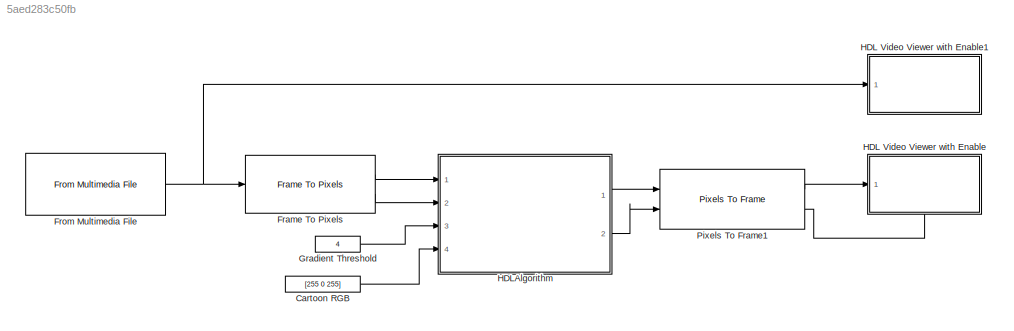
MODEL slx_5aed283c50fb
KIND model
CONFIG AbsTol = auto
CONFIG EnableMultiTasking = off
CONFIG FixedStep = auto
CONFIG MaxStep = auto
CONFIG MinStep = auto
CONFIG RelTol = 1e-3
CONFIG SampleTimeConstraint = Unconstrained
CONFIG Solver = FixedStepDiscrete
CONFIG SolverName = FixedStepDiscrete
CONFIG StartTime = 0.0
CONFIG StopTime = 9
BLOCK [Constant] Cartoon RGB
  OutDataTypeStr = Inherit: Inherit via back propagation
  SampleTime = -1
  Value = [255 0 255]
BLOCK [Reference] Frame To Pixels  REF=visionhdlio/Frame To Pixels
  Ports = [1, 2]
  SourceBlock = visionhdlio/Frame To Pixels
  SourceProductBaseCode = VT
  SourceProductName = Vision HDL Toolbox
  SourceType = Frame To Pixels
BLOCK [Reference] From Multimedia File  REF=dspvision/From Multimedia File
  Ports = [0, 1]
  SourceBlock = dspvision/From Multimedia File
  SourceProductBaseCode = DS
  SourceProductName = DSP System Toolbox
  SourceType = From Multimedia File
BLOCK [Constant] Gradient Threshold
  OutDataTypeStr = uint8
  SampleTime = -1
  Value = 4
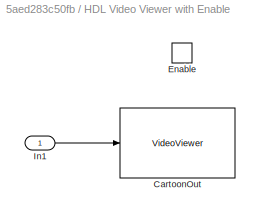
BLOCK [SubSystem] HDL Video Viewer with Enable
  Ports = [1, 0, 1]
  RequestExecContextInheritance = off
BLOCK [VideoViewer] HDL Video Viewer with Enable/CartoonOut
  FigPos = [420 351 320 243]
  Ports = [1]
  ScopeSpecificationString = vipscopes.VideoViewerScopeCfg('CurrentConfiguration', extmgr.ConfigurationSet(extmgr.Configuration('Core','General UI',true),extmgr.Configuration('Core','Source UI',true),extmgr.Configuration('Sources','WiredSimulink',true),extmgr.Configuration('Visuals','Video',true,'AxesProperties',struct('Color',[1 1 1],'XColor',[0.15 0.15 0.15],'YColor',[0.15 0.15 0.15],'ZColor',[0.15 0.15 0.15],'XGrid','off',...<+624ch>
  colormapValue = gray(256)
BLOCK [EnablePort] HDL Video Viewer with Enable/Enable
  Ports = []
BLOCK [Inport] HDL Video Viewer with Enable/In1
  IconDisplay = Port number
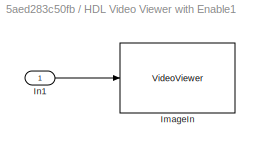
BLOCK [SubSystem] HDL Video Viewer with Enable1
  Ports = [1]
  RequestExecContextInheritance = off
BLOCK [VideoViewer] HDL Video Viewer with Enable1/ImageIn
  FigPos = [249 353 321 244]
  Ports = [1]
  ScopeSpecificationString = vipscopes.VideoViewerScopeCfg('CurrentConfiguration', extmgr.ConfigurationSet(extmgr.Configuration('Core','General UI',true),extmgr.Configuration('Core','Source UI',true),extmgr.Configuration('Sources','WiredSimulink',true),extmgr.Configuration('Visuals','Video',true,'AxesProperties',struct('Color',[1 1 1],'XColor',[0.15 0.15 0.15],'YColor',[0.15 0.15 0.15],'ZColor',[0.15 0.15 0.15],'XGrid','off',...<+624ch>
  colormapValue = gray(256)
BLOCK [Inport] HDL Video Viewer with Enable1/In1
  IconDisplay = Port number
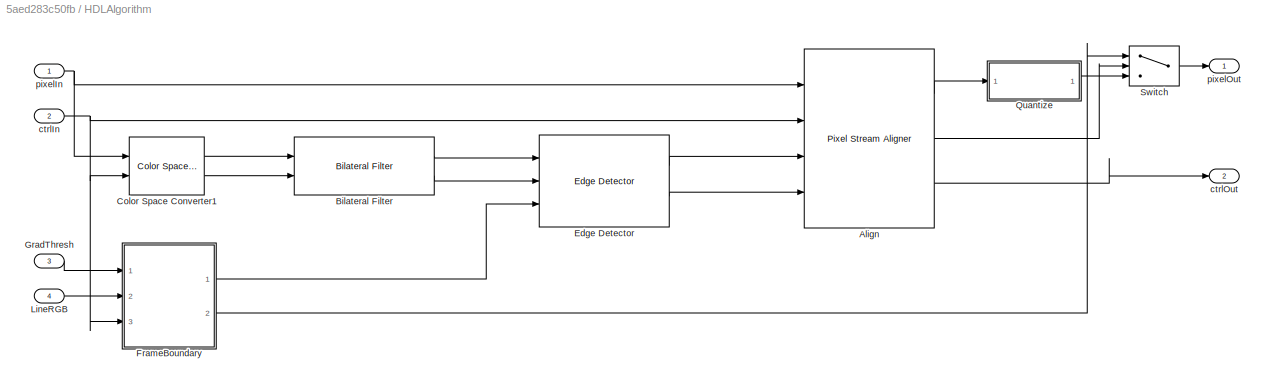
BLOCK [SubSystem] HDLAlgorithm
  Ports = [4, 2]
  RequestExecContextInheritance = off
BLOCK [Reference] HDLAlgorithm/Align  REF=visionhdlutilities/Pixel Stream Aligner
  Ports = [4, 3]
  SourceBlock = visionhdlutilities/Pixel Stream Aligner
  SourceProductBaseCode = VT
  SourceProductName = Vision HDL Toolbox
  SourceType = visionhdl.PixelStreamAligner
BLOCK [Reference] HDLAlgorithm/Bilateral Filter  REF=visionhdlfilter/Bilateral Filter
  Ports = [2, 2]
  SourceBlock = visionhdlfilter/Bilateral Filter
  SourceProductBaseCode = VT
  SourceProductName = Vision HDL Toolbox
  SourceType = visionhdl.BilateralFilter
BLOCK [Reference] HDLAlgorithm/Color Space Converter1  REF=visionhdlconversions/Color Space Converter
  Ports = [2, 2]
  SourceBlock = visionhdlconversions/Color Space Converter
  SourceProductBaseCode = VT
  SourceProductName = Vision HDL Toolbox
  SourceType = Color Space Converter
BLOCK [Reference] HDLAlgorithm/Edge Detector  REF=visionhdlanalysis/Edge Detector
  Ports = [3, 2]
  SourceBlock = visionhdlanalysis/Edge Detector
  SourceProductBaseCode = VT
  SourceProductName = Vision HDL Toolbox
  SourceType = Edge Detector
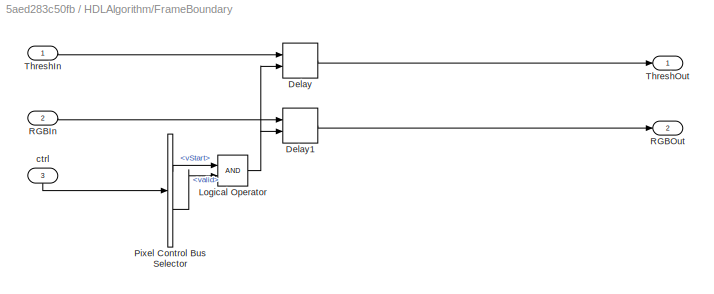
BLOCK [SubSystem] HDLAlgorithm/FrameBoundary
  Ports = [3, 2]
  RequestExecContextInheritance = off
BLOCK [Delay] HDLAlgorithm/FrameBoundary/Delay
  DelayLength = 1
  InputPortMap = u0,e6
  Ports = [2, 1]
  ShowEnablePort = on
BLOCK [Delay] HDLAlgorithm/FrameBoundary/Delay1
  DelayLength = 1
  InputPortMap = u0,e6
  Ports = [2, 1]
  ShowEnablePort = on
BLOCK [Logic] HDLAlgorithm/FrameBoundary/Logical Operator
  AllPortsSameDT = off
  OutDataTypeStr = boolean
  Ports = [2, 1]
BLOCK [BusSelector] HDLAlgorithm/FrameBoundary/Pixel Control Bus Selector
  OutputAsBus = off
  OutputSignals = vStart,valid
  Ports = [1, 2]
BLOCK [Inport] HDLAlgorithm/FrameBoundary/RGBIn
  IconDisplay = Port number
  Port = 2
BLOCK [Outport] HDLAlgorithm/FrameBoundary/RGBOut
  IconDisplay = Port number
  Port = 2
  VectorParamsAs1DForOutWhenUnconnected = off
BLOCK [Inport] HDLAlgorithm/FrameBoundary/ThreshIn
  IconDisplay = Port number
BLOCK [Outport] HDLAlgorithm/FrameBoundary/ThreshOut
  IconDisplay = Port number
  VectorParamsAs1DForOutWhenUnconnected = off
BLOCK [Inport] HDLAlgorithm/FrameBoundary/ctrl
  IconDisplay = Port number
  Port = 3
BLOCK [Inport] HDLAlgorithm/GradThresh
  IconDisplay = Port number
  Port = 3
BLOCK [Inport] HDLAlgorithm/LineRGB
  IconDisplay = Port number
  Port = 4
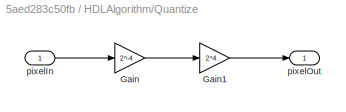
BLOCK [SubSystem] HDLAlgorithm/Quantize
  Ports = [1, 1]
  RequestExecContextInheritance = off
BLOCK [Gain] HDLAlgorithm/Quantize/Gain
  Gain = 2^-4
  ParamDataTypeStr = Inherit: Inherit via internal rule
  SaturateOnIntegerOverflow = off
BLOCK [Gain] HDLAlgorithm/Quantize/Gain1
  Gain = 2^4
  ParamDataTypeStr = Inherit: Inherit via internal rule
  SaturateOnIntegerOverflow = off
BLOCK [Inport] HDLAlgorithm/Quantize/pixelIn
  IconDisplay = Port number
BLOCK [Outport] HDLAlgorithm/Quantize/pixelOut
  IconDisplay = Port number
  VectorParamsAs1DForOutWhenUnconnected = off
BLOCK [Switch] HDLAlgorithm/Switch
  Criteria = u2 ~= 0
  InputSameDT = off
  SaturateOnIntegerOverflow = off
BLOCK [Inport] HDLAlgorithm/ctrlIn
  IconDisplay = Port number
  Port = 2
BLOCK [Outport] HDLAlgorithm/ctrlOut
  IconDisplay = Port number
  Port = 2
  VectorParamsAs1DForOutWhenUnconnected = off
BLOCK [Inport] HDLAlgorithm/pixelIn
  IconDisplay = Port number
BLOCK [Outport] HDLAlgorithm/pixelOut
  IconDisplay = Port number
  VectorParamsAs1DForOutWhenUnconnected = off
BLOCK [Reference] Pixels To Frame1  REF=visionhdlio/Pixels To Frame
  Ports = [2, 2]
  SourceBlock = visionhdlio/Pixels To Frame
  SourceProductBaseCode = VT
  SourceProductName = Vision HDL Toolbox
  SourceType = Pixels To Frame
LINE Cartoon RGB:1 -> HDLAlgorithm:4
LINE Frame To Pixels:1 -> HDLAlgorithm:1
LINE Frame To Pixels:2 -> HDLAlgorithm:2
NET From Multimedia File:1 -> Frame To Pixels:1, HDL Video Viewer with Enable1:1
LINE Gradient Threshold:1 -> HDLAlgorithm:3
LINE HDL Video Viewer with Enable/In1:1 -> HDL Video Viewer with Enable/CartoonOut:1
LINE HDL Video Viewer with Enable1/In1:1 -> HDL Video Viewer with Enable1/ImageIn:1
LINE HDLAlgorithm/Align:1 -> HDLAlgorithm/Quantize:1
LINE HDLAlgorithm/Align:2 -> HDLAlgorithm/Switch:2
LINE HDLAlgorithm/Align:3 -> HDLAlgorithm/ctrlOut:1
LINE HDLAlgorithm/Bilateral Filter:1 -> HDLAlgorithm/Edge Detector:1
LINE HDLAlgorithm/Bilateral Filter:2 -> HDLAlgorithm/Edge Detector:2
LINE HDLAlgorithm/Color Space Converter1:1 -> HDLAlgorithm/Bilateral Filter:1
LINE HDLAlgorithm/Color Space Converter1:2 -> HDLAlgorithm/Bilateral Filter:2
LINE HDLAlgorithm/Edge Detector:1 -> HDLAlgorithm/Align:3
LINE HDLAlgorithm/Edge Detector:2 -> HDLAlgorithm/Align:4
LINE HDLAlgorithm/FrameBoundary/Delay1:1 -> HDLAlgorithm/FrameBoundary/RGBOut:1
LINE HDLAlgorithm/FrameBoundary/Delay:1 -> HDLAlgorithm/FrameBoundary/ThreshOut:1
NET HDLAlgorithm/FrameBoundary/Logical Operator:1 -> HDLAlgorithm/FrameBoundary/Delay1:2, HDLAlgorithm/FrameBoundary/Delay:2
LINE HDLAlgorithm/FrameBoundary/Pixel Control Bus Selector:1 -> HDLAlgorithm/FrameBoundary/Logical Operator:1
LINE HDLAlgorithm/FrameBoundary/Pixel Control Bus Selector:2 -> HDLAlgorithm/FrameBoundary/Logical Operator:2
LINE HDLAlgorithm/FrameBoundary/RGBIn:1 -> HDLAlgorithm/FrameBoundary/Delay1:1
LINE HDLAlgorithm/FrameBoundary/ThreshIn:1 -> HDLAlgorithm/FrameBoundary/Delay:1
LINE HDLAlgorithm/FrameBoundary/ctrl:1 -> HDLAlgorithm/FrameBoundary/Pixel Control Bus Selector:1
LINE HDLAlgorithm/FrameBoundary:1 -> HDLAlgorithm/Edge Detector:3
LINE HDLAlgorithm/FrameBoundary:2 -> HDLAlgorithm/Switch:1
LINE HDLAlgorithm/GradThresh:1 -> HDLAlgorithm/FrameBoundary:1
LINE HDLAlgorithm/LineRGB:1 -> HDLAlgorithm/FrameBoundary:2
LINE HDLAlgorithm/Quantize/Gain1:1 -> HDLAlgorithm/Quantize/pixelOut:1
LINE HDLAlgorithm/Quantize/Gain:1 -> HDLAlgorithm/Quantize/Gain1:1
LINE HDLAlgorithm/Quantize/pixelIn:1 -> HDLAlgorithm/Quantize/Gain:1
LINE HDLAlgorithm/Quantize:1 -> HDLAlgorithm/Switch:3
LINE HDLAlgorithm/Switch:1 -> HDLAlgorithm/pixelOut:1
NET HDLAlgorithm/ctrlIn:1 -> HDLAlgorithm/Align:2, HDLAlgorithm/Color Space Converter1:2, HDLAlgorithm/FrameBoundary:3
NET HDLAlgorithm/pixelIn:1 -> HDLAlgorithm/Align:1, HDLAlgorithm/Color Space Converter1:1
LINE HDLAlgorithm:1 -> Pixels To Frame1:1
LINE HDLAlgorithm:2 -> Pixels To Frame1:2
LINE Pixels To Frame1:1 -> HDL Video Viewer with Enable:1
LINE Pixels To Frame1:2 -> HDL Video Viewer with Enable:enable
note: NET lines group one-source signal fan-out (src -> all destinations, sorted); 1:1 wires keep LINE
